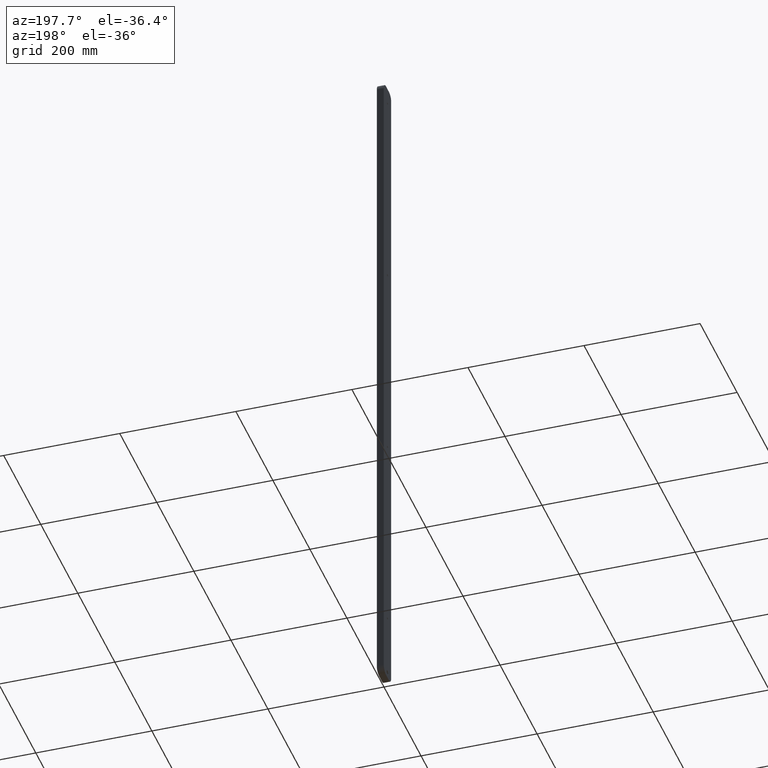
[diagram: clean part render]
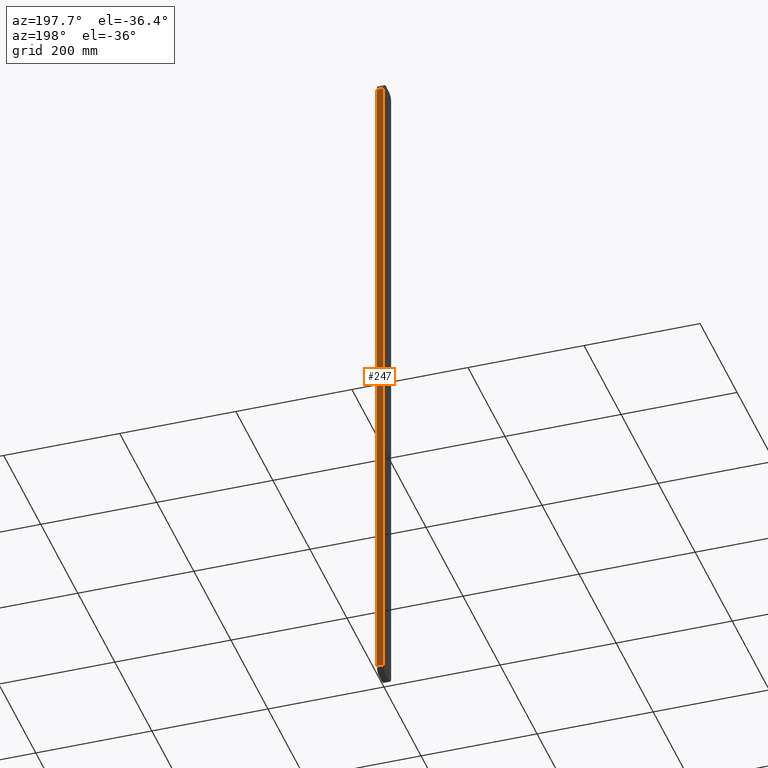
[diagram: same view with one face highlighted and labeled with its STEP entity id]
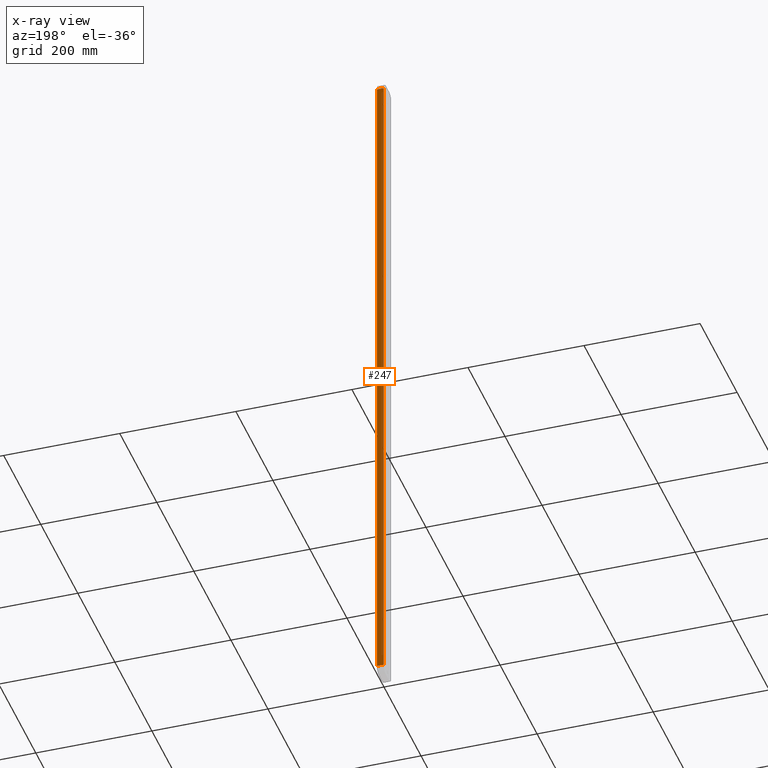
[diagram: x-ray of the same camera — body ghosted, the highlighted face saturated]
A machine part, auxiliary view. The second image highlights one B-rep face of the part: STEP entity #247.
The next image is the same camera in x-ray: the body ghosted, the highlighted face saturated — about 0% of this face is hidden behind the body in this view.
In plain terms, the highlighted planar face has unit normal (0, -1, 0).
Its self-contained STEP definition (entity closure, byte-faithful):
#5 = CARTESIAN_POINT ( 'NONE',  ( 6.000000000000000900, 20.00000000000000000, 588.0000000000000000 ) ) ;
#37 = PLANE ( 'NONE',  #504 ) ;
#65 = EDGE_LOOP ( 'NONE', ( #553, #375, #118, #673 ) ) ;
#117 = VERTEX_POINT ( 'NONE', #580 ) ;
#118 = ORIENTED_EDGE ( 'NONE', *, *, #660, .T. ) ;
#127 = VECTOR ( 'NONE', #194, 1000.000000000000000 ) ;
#131 = LINE ( 'NONE', #163, #612 ) ;
#163 = CARTESIAN_POINT ( 'NONE',  ( -5.999999999999999100, 20.00000000000000000, 600.0000000000000000 ) ) ;
#194 = DIRECTION ( 'NONE',  ( -1.000000000000000000, 0.0000000000000000000, 0.0000000000000000000 ) ) ;
#196 = VECTOR ( 'NONE', #371, 1000.000000000000000 ) ;
#247 = ADVANCED_FACE ( 'NONE', ( #878 ), #37, .F. ) ;
#255 = CARTESIAN_POINT ( 'NONE',  ( -5.999999999999999100, 20.00000000000000000, -588.0000000000000000 ) ) ;
#284 = EDGE_CURVE ( 'NONE', #686, #334, #865, .T. ) ;
#318 = DIRECTION ( 'NONE',  ( 0.0000000000000000000, -0.0000000000000000000, -1.000000000000000000 ) ) ;
#334 = VERTEX_POINT ( 'NONE', #891 ) ;
#341 = DIRECTION ( 'NONE',  ( -0.0000000000000000000, -0.0000000000000000000, -1.000000000000000000 ) ) ;
#370 = LINE ( 'NONE', #835, #541 ) ;
#371 = DIRECTION ( 'NONE',  ( 1.000000000000000000, -0.0000000000000000000, -0.0000000000000000000 ) ) ;
#375 = ORIENTED_EDGE ( 'NONE', *, *, #420, .T. ) ;
#420 = EDGE_CURVE ( 'NONE', #117, #904, #619, .T. ) ;
#462 = DIRECTION ( 'NONE',  ( -0.0000000000000000000, -0.0000000000000000000, -1.000000000000000000 ) ) ;
#504 = AXIS2_PLACEMENT_3D ( 'NONE', #827, #576, #318 ) ;
#541 = VECTOR ( 'NONE', #341, 1000.000000000000000 ) ;
#553 = ORIENTED_EDGE ( 'NONE', *, *, #900, .F. ) ;
#576 = DIRECTION ( 'NONE',  ( 0.0000000000000000000, -1.000000000000000000, 0.0000000000000000000 ) ) ;
#580 = CARTESIAN_POINT ( 'NONE',  ( -5.999999999999999100, 20.00000000000000000, 588.0000000000000000 ) ) ;
#612 = VECTOR ( 'NONE', #462, 1000.000000000000000 ) ;
#619 = LINE ( 'NONE', #5, #196 ) ;
#660 = EDGE_CURVE ( 'NONE', #904, #686, #370, .T. ) ;
#669 = CARTESIAN_POINT ( 'NONE',  ( 6.000000000000000900, 20.00000000000000000, -588.0000000000000000 ) ) ;
#673 = ORIENTED_EDGE ( 'NONE', *, *, #284, .T. ) ;
#686 = VERTEX_POINT ( 'NONE', #669 ) ;
#827 = CARTESIAN_POINT ( 'NONE',  ( -5.999999999999999100, 20.00000000000000000, 600.0000000000000000 ) ) ;
#835 = CARTESIAN_POINT ( 'NONE',  ( 6.000000000000000900, 20.00000000000000000, 600.0000000000000000 ) ) ;
#865 = LINE ( 'NONE', #255, #127 ) ;
#873 = CARTESIAN_POINT ( 'NONE',  ( 6.000000000000000900, 20.00000000000000000, 588.0000000000000000 ) ) ;
#878 = FACE_OUTER_BOUND ( 'NONE', #65, .T. ) ;
#891 = CARTESIAN_POINT ( 'NONE',  ( -5.999999999999999100, 20.00000000000000000, -588.0000000000000000 ) ) ;
#900 = EDGE_CURVE ( 'NONE', #117, #334, #131, .T. ) ;
#904 = VERTEX_POINT ( 'NONE', #873 ) ;